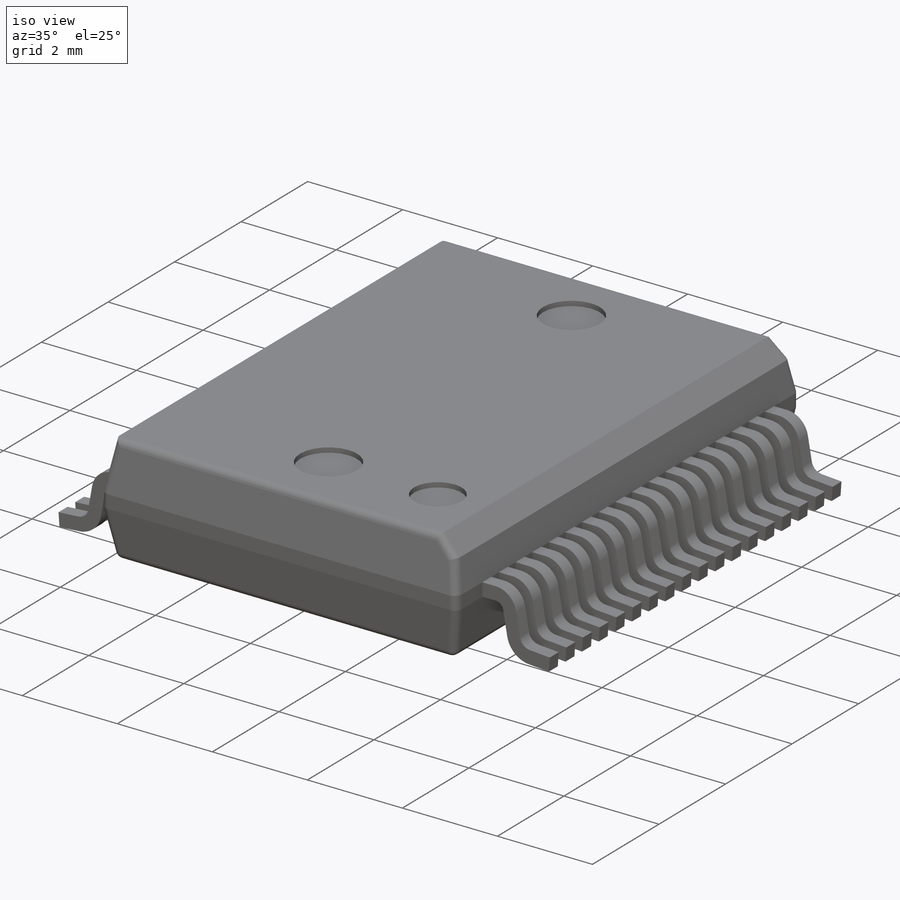
[diagram: iso view]
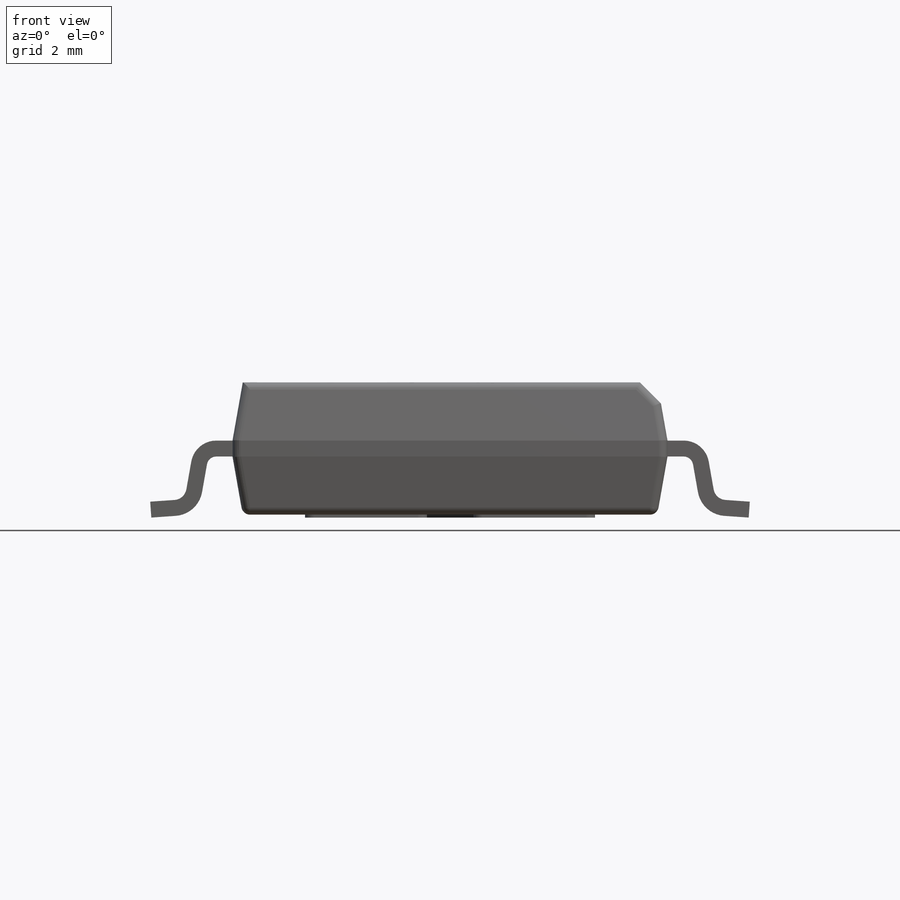
[diagram: front view]
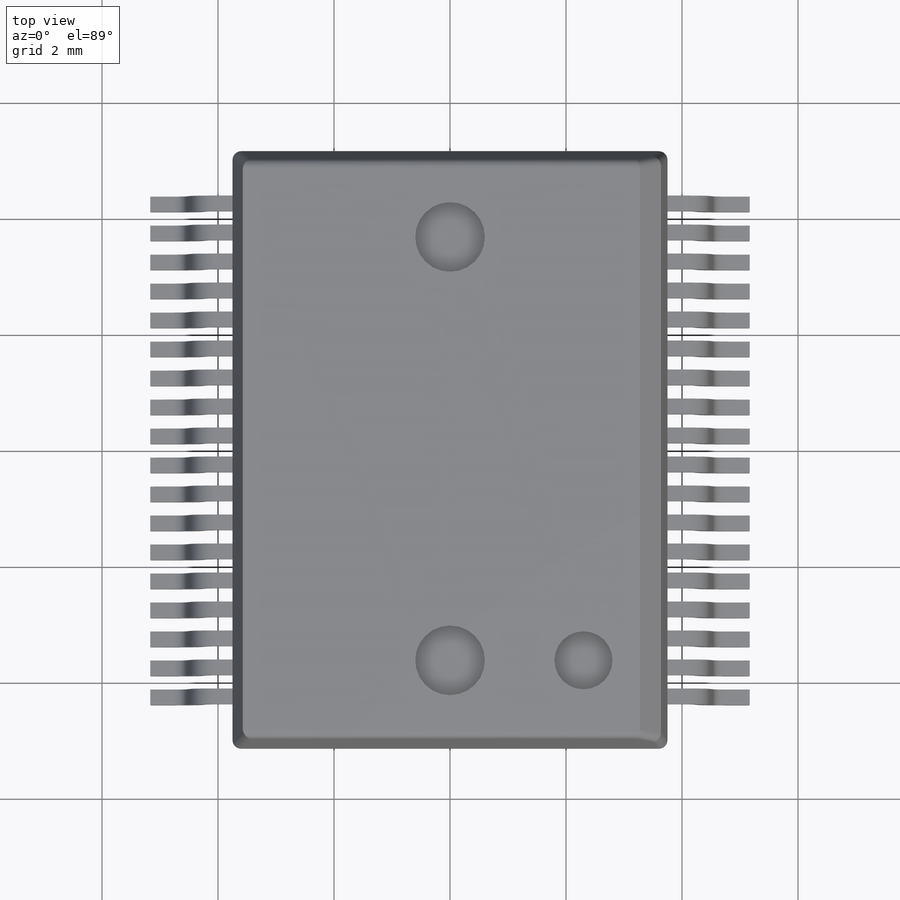
[diagram: top view]
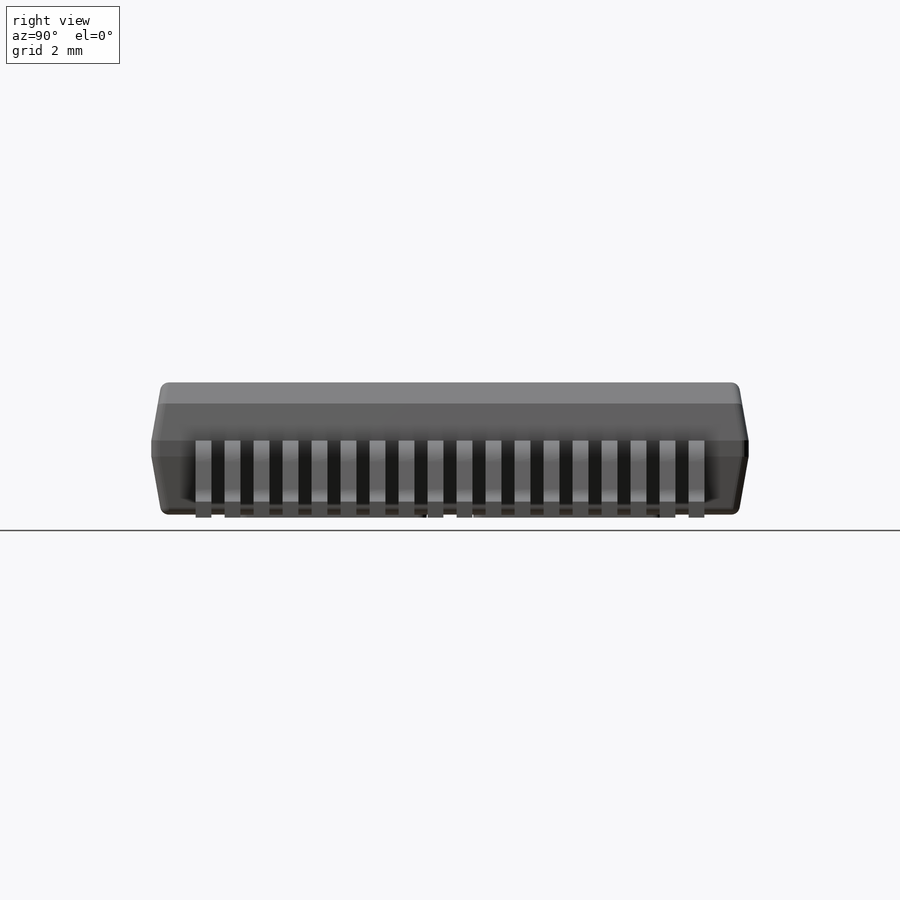
[diagram: right view]
SOLIDWORKS PART (.sldprt)
format: sldprt  version: not decoded by parser v0  size: 2,292,736 bytes
history: native  units: mm
features: sketch x9, plane x5, cut_extrude x4, extrude x2, material x1, chamfer x1, fillet x1, sweep x1, pattern_linear x1, mirror x1 (+12 scaffold rows collapsed)
feature tree (38):
  scaffold x12  (default folders/planes/origin — collapsed)
  material  "Material <not specified>"
  plane  "case bottom"  Offset=0.05mm
  sketch  "Sketch1"  dims[D1=7.5mm D2=10.3mm]
  extrude  "Boss-Extrude1"  Depth=2.28mm
  plane  "Plane1"
  plane  "Plane2"  Offset=0.1375mm
  sketch  "Sketch2"  dims[c1.D1=~2.19911mm c2.D1=10.0deg c2.D2=0.275mm]
  sketch  "Sketch3"  dims[c1.D1=~2.19911mm c2.D1=10.0deg c2.D2=0.275mm c3.D1=1.0025mm c4.D1=10.0deg c4.D2=90.0deg]
  cut_extrude  "Cut-Extrude1"  [1 undecoded]
  cut_extrude  "Cut-Extrude2"  [1 undecoded]
  sketch  "Sketch6"  dims[D1=1.2mm D2=1.0mm D3=3.65mm D4=2.3mm]
  cut_extrude  "Cut-Extrude3"  Depth=0.1mm
  chamfer  "Chamfer1"  Distance=0.3mm Angle=45deg
  sketch  "Sketch8"  dims[D1=0.8mm D2=4.3mm D3=2.9mm]
  cut_extrude  "Cut-Extrude4"  Depth=0.1mm
  fillet  "Fillet1"  Radius=0.15mm
  sketch  "Sketch14"  dims[c1.D8=0.15mm c1.D1=3.25mm c1.D2=2.1mm c2.D1=3.25mm c2.D2=2.1mm c2.D3=3.25mm c2.D4=4.95mm c3.D3=3.25mm c3.D4=4.95mm c3.D5=0.4mm c3.D6=0.4mm c3.D7=0.4mm]
  extrude  "Boss-Extrude2"  Depth=0.05mm
  plane  "Plane3"  Offset=5.15mm
  plane  "Plane4"  Offset=4.25mm
  sketch  "Sketch9"
  sketch  "Sketch10"  dims[c1.D1=0.275mm c1.D2=0.27mm c2.D1=0.275mm c2.D2=0.27mm]
  sketch  "Sketch11"  dims[c1.D5=0.3mm c1.D6=0.35mm c1.D1=4.0deg c1.D2=0.275mm c1.D3=0.25mm c1.D4=0.8mm c1.D9=~0.220829mm c2.D9=100.0deg c2.D10=0.28mm c2.D7=0.1375mm c2.D8=0.1375mm]
  sweep  "Sweep1"
  pattern_linear  "LPattern1"  Count1=18 Count2=1 Spacing1=0.5mm Spacing2=10mm
  mirror  "Mirror1"
decode coverage: 15 of 20 modeling features carry decoded parameters
note: ~ marks probable driven/reference dimensions
note: 2 parameter values undecoded
note: suppression state not decoded; provenance and decode notes live in map.json
